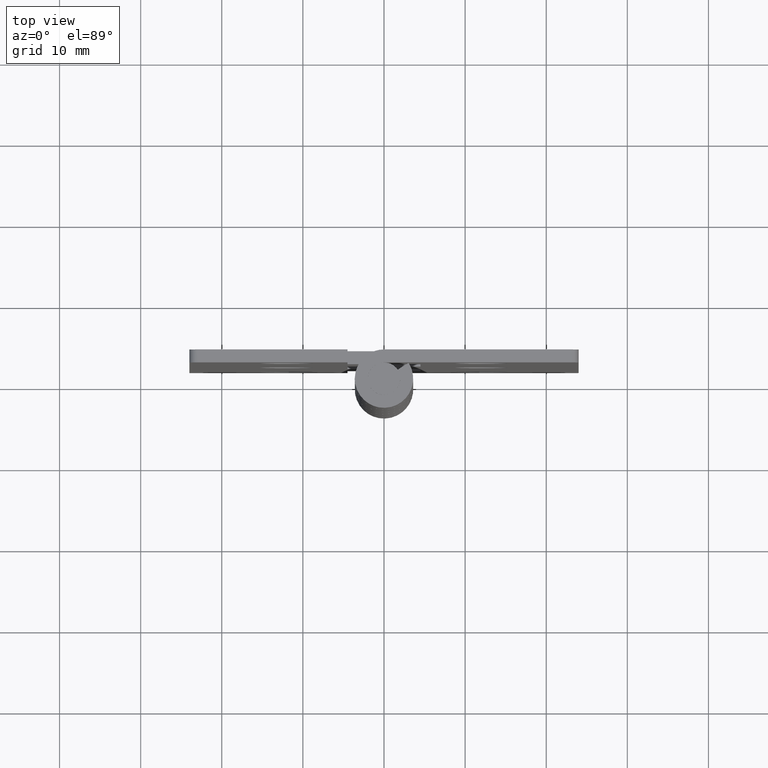
[diagram: clean part render]
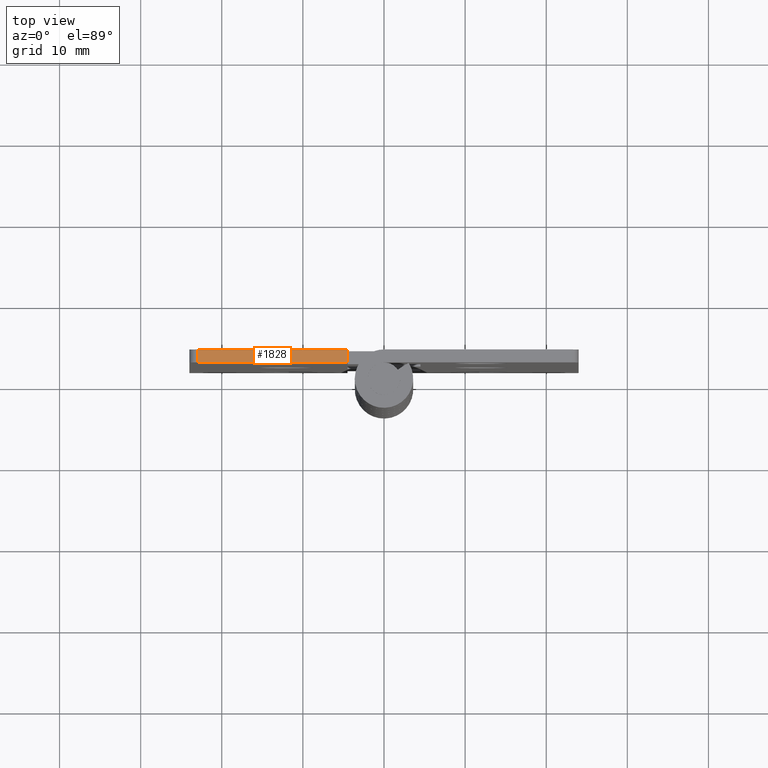
[diagram: same view with one face highlighted and labeled with its STEP entity id]
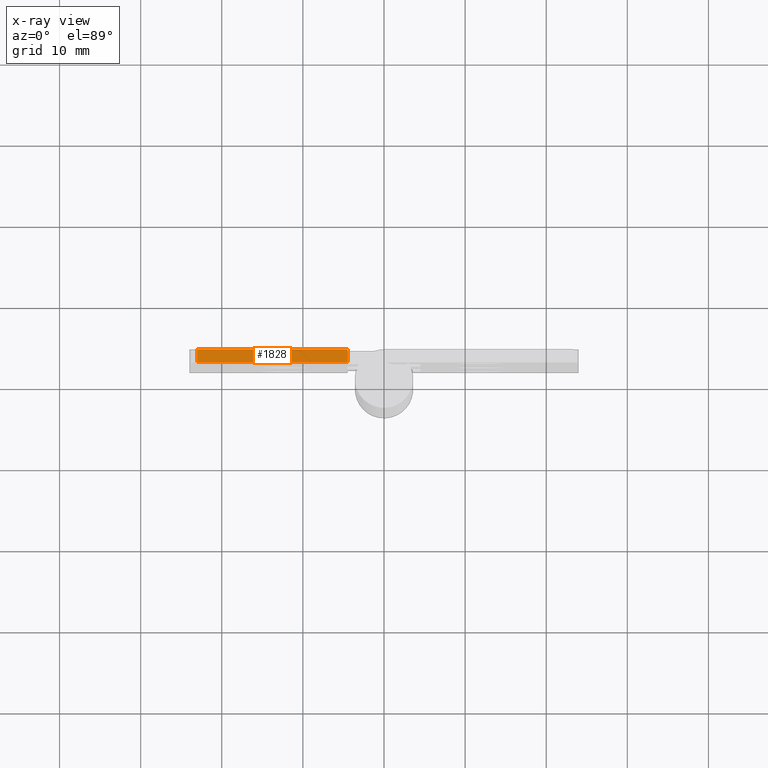
[diagram: x-ray of the same camera — body ghosted, the highlighted face saturated]
A machine part, top view. The second image highlights one B-rep face of the part: STEP entity #1828.
The next image is the same camera in x-ray: the body ghosted, the highlighted face saturated — about 0% of this face is hidden behind the body in this view.
In plain terms, the highlighted face is a freeform B-spline surface patch.
Its self-contained STEP definition (entity closure, byte-faithful):
#1295=CARTESIAN_POINT('',(-23.0,3.599998000000000,76.000007999999994));
#1296=VERTEX_POINT('',#1295);
#1317=CARTESIAN_POINT('',(-23.0,2.0,76.000007999999994));
#1318=VERTEX_POINT('',#1317);
#1332=CARTESIAN_POINT('',(-23.0,3.599998000000000,76.000007999999994));
#1333=CARTESIAN_POINT('',(-23.0,2.0,76.000007999999994));
#1334=QUASI_UNIFORM_CURVE('',1,(#1332,#1333),.UNSPECIFIED.,.F.,.U.);
#1335=EDGE_CURVE('',#1296,#1318,#1334,.T.);
#1697=CARTESIAN_POINT('',(-4.499999999999915,3.599998000000000,76.000007999999994));
#1698=VERTEX_POINT('',#1697);
#1704=CARTESIAN_POINT('',(-4.499999999999915,2.0,76.000007999999994));
#1705=VERTEX_POINT('',#1704);
#1706=CARTESIAN_POINT('',(-4.499999999999915,2.0,76.000007999999994));
#1707=CARTESIAN_POINT('',(-4.499999999999915,3.599998000000000,76.000007999999994));
#1708=QUASI_UNIFORM_CURVE('',1,(#1706,#1707),.UNSPECIFIED.,.F.,.U.);
#1709=EDGE_CURVE('',#1705,#1698,#1708,.T.);
#1809=CARTESIAN_POINT('',(-23.924074964143418,1.920080103001106,76.000007999999994));
#1810=CARTESIAN_POINT('',(-3.575924539647833,1.920080103001106,76.000007999999994));
#1811=CARTESIAN_POINT('',(-23.924074964143418,3.679917939914185,76.000007999999994));
#1812=CARTESIAN_POINT('',(-3.575924539647833,3.679917939914185,76.000007999999994));
#1813=B_SPLINE_SURFACE_WITH_KNOTS('',1,1,((#1809,#1811),(#1810,#1812)),.UNSPECIFIED.,.F.,.F.,.U.,(2,2),(2,2),(0.0,20.348150424495579),(0.041708334948495,0.958291687403247),.UNSPECIFIED.);
#1814=CARTESIAN_POINT('',(-4.499999999999915,3.599998000000000,76.000007999999994));
#1815=CARTESIAN_POINT('',(-23.0,3.599998000000000,76.000007999999994));
#1816=QUASI_UNIFORM_CURVE('',1,(#1814,#1815),.UNSPECIFIED.,.F.,.U.);
#1817=EDGE_CURVE('',#1698,#1296,#1816,.T.);
#1818=ORIENTED_EDGE('',*,*,#1817,.T.);
#1819=ORIENTED_EDGE('',*,*,#1335,.T.);
#1820=CARTESIAN_POINT('',(-23.0,2.0,76.000007999999994));
#1821=CARTESIAN_POINT('',(-4.499999999999915,2.0,76.000007999999994));
#1822=QUASI_UNIFORM_CURVE('',1,(#1820,#1821),.UNSPECIFIED.,.F.,.U.);
#1823=EDGE_CURVE('',#1318,#1705,#1822,.T.);
#1824=ORIENTED_EDGE('',*,*,#1823,.T.);
#1825=ORIENTED_EDGE('',*,*,#1709,.T.);
#1826=EDGE_LOOP('',(#1818,#1819,#1824,#1825));
#1827=FACE_OUTER_BOUND('',#1826,.T.);
#1828=ADVANCED_FACE('',(#1827),#1813,.T.);